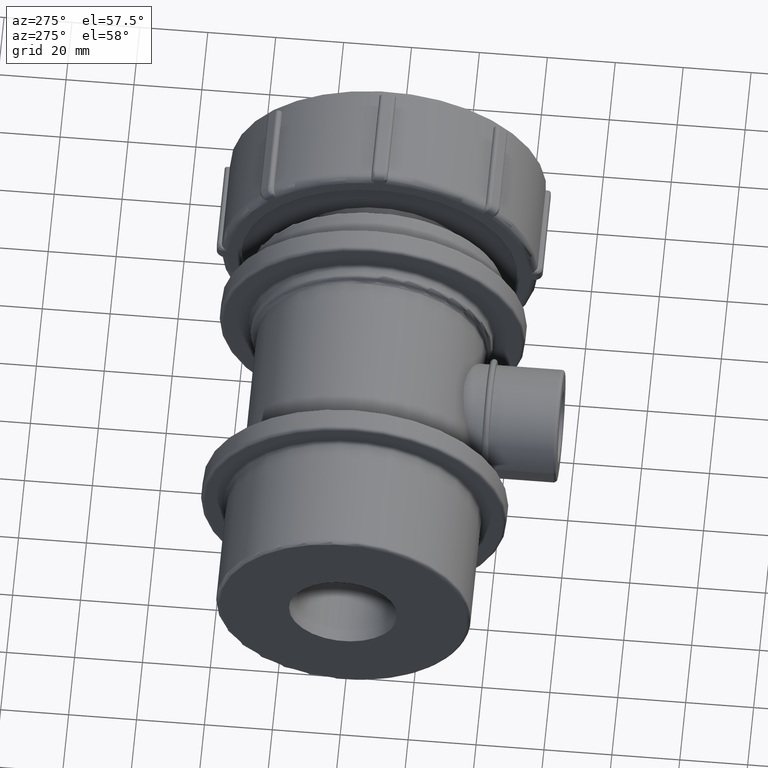
[diagram: clean part render]
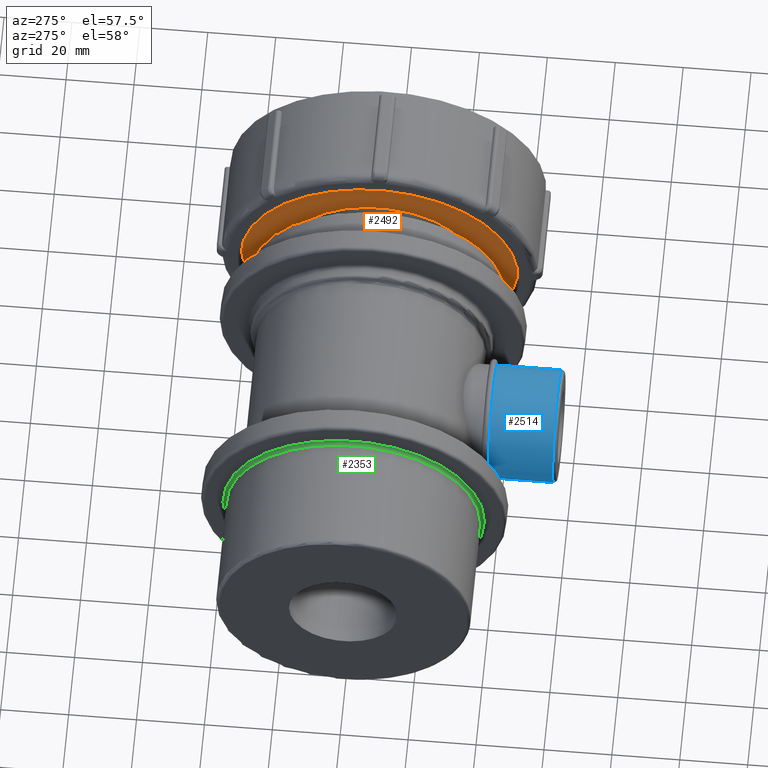
[diagram: same view with three faces highlighted in distinct colors, each labeled with its STEP entity id]
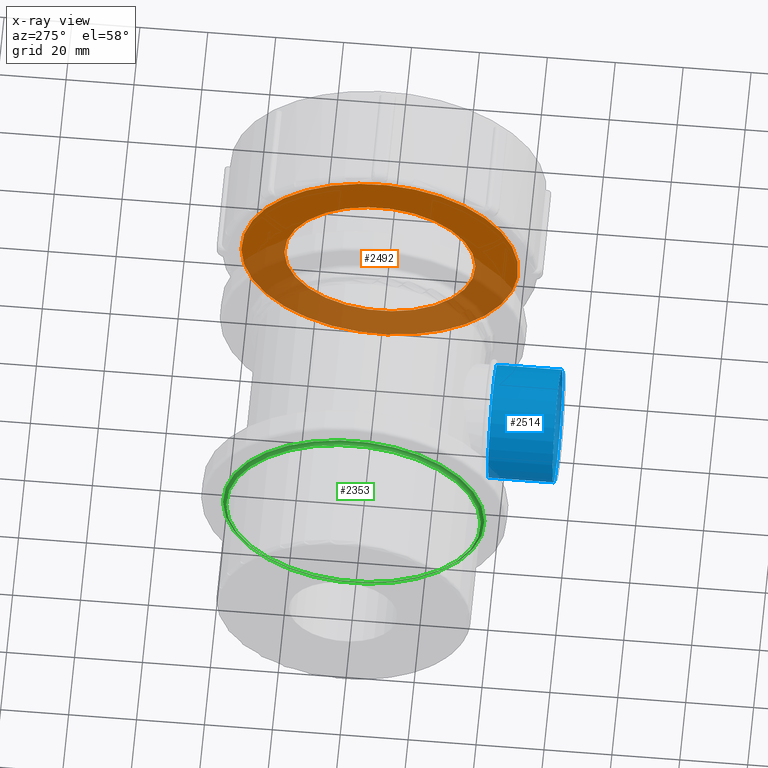
[diagram: x-ray of the same camera — body ghosted, the three highlighted faces saturated]
A machine part, auxiliary view with three faces highlighted in distinct colors.
The next image is the same camera in x-ray (body ghosted, the three faces saturated) — at least one of them is partly hidden behind the body in this view.
Their STEP definitions:

[orange] entity #2492 — the highlighted planar face has unit normal (-1, 0, 0).
#296=PLANE('',#2798);
#335=CIRCLE('',#2577,28.125);
#474=CIRCLE('',#2799,40.8);
#551=FACE_BOUND('',#921,.T.);
#720=FACE_OUTER_BOUND('',#920,.T.);
#920=EDGE_LOOP('',(#2236));
#921=EDGE_LOOP('',(#2237));
#1053=VERTEX_POINT('',#3762);
#1232=VERTEX_POINT('',#4907);
#1285=EDGE_CURVE('',#1053,#1053,#335,.T.);
#1576=EDGE_CURVE('',#1232,#1232,#474,.T.);
#2236=ORIENTED_EDGE('',*,*,#1576,.F.);
#2237=ORIENTED_EDGE('',*,*,#1285,.T.);
#2492=ADVANCED_FACE('',(#720,#551),#296,.T.);
#2577=AXIS2_PLACEMENT_3D('',#3763,#2960,#2961);
#2798=AXIS2_PLACEMENT_3D('',#4906,#3506,#3507);
#2799=AXIS2_PLACEMENT_3D('',#4908,#3508,#3509);
#2960=DIRECTION('center_axis',(1.,0.,0.));
#2961=DIRECTION('ref_axis',(0.,0.,-1.));
#3506=DIRECTION('center_axis',(-1.,0.,0.));
#3507=DIRECTION('ref_axis',(0.,0.,1.));
#3508=DIRECTION('center_axis',(1.,0.,0.));
#3509=DIRECTION('ref_axis',(0.,0.,-1.));
#3762=CARTESIAN_POINT('',(53.275,28.125,0.));
#3763=CARTESIAN_POINT('Origin',(53.275,0.,0.));
#4906=CARTESIAN_POINT('Origin',(53.275,40.8,0.));
#4907=CARTESIAN_POINT('',(53.275,40.8,0.));
#4908=CARTESIAN_POINT('Origin',(53.275,0.,0.));

[blue] entity #2514 — the highlighted cylindrical surface (bore or boss wall) has radius 16.6245 mm, axis along (-0, 1, 0).
#491=CIRCLE('',#2835,16.6245);
#493=CIRCLE('',#2838,16.6245);
#574=FACE_BOUND('',#966,.T.);
#742=FACE_OUTER_BOUND('',#965,.T.);
#965=EDGE_LOOP('',(#2281));
#966=EDGE_LOOP('',(#2282));
#1251=VERTEX_POINT('',#5054);
#1253=VERTEX_POINT('',#5059);
#1595=EDGE_CURVE('',#1251,#1251,#491,.T.);
#1597=EDGE_CURVE('',#1253,#1253,#493,.T.);
#2281=ORIENTED_EDGE('',*,*,#1595,.F.);
#2282=ORIENTED_EDGE('',*,*,#1597,.F.);
#2346=CYLINDRICAL_SURFACE('',#2841,16.6245);
#2514=ADVANCED_FACE('',(#742,#574),#2346,.T.);
#2835=AXIS2_PLACEMENT_3D('',#5055,#3580,#3581);
#2838=AXIS2_PLACEMENT_3D('',#5060,#3586,#3587);
#2841=AXIS2_PLACEMENT_3D('',#5064,#3592,#3593);
#3580=DIRECTION('center_axis',(-1.22464679914735E-16,1.,0.));
#3581=DIRECTION('ref_axis',(1.,1.22464679914735E-16,0.));
#3586=DIRECTION('center_axis',(1.22464679914735E-16,-1.,0.));
#3587=DIRECTION('ref_axis',(1.,1.25216888999499E-16,0.));
#3592=DIRECTION('center_axis',(-1.22464679914735E-16,1.,0.));
#3593=DIRECTION('ref_axis',(-1.,0.,0.));
#5054=CARTESIAN_POINT('',(-16.6245,-38.,0.));
#5055=CARTESIAN_POINT('Origin',(4.65365783675994E-15,-38.,0.));
#5059=CARTESIAN_POINT('',(-16.6245,-57.,-2.03591407124252E-15));
#5060=CARTESIAN_POINT('Origin',(6.98048675513991E-15,-57.,0.));
#5064=CARTESIAN_POINT('Origin',(5.8783046359073E-15,-48.,0.));

[green] entity #2353 — the highlighted toroidal blend (fillet) surface has major radius 38.5 mm and minor (blend) radius 1 mm.
#309=CIRCLE('',#2525,37.5);
#311=CIRCLE('',#2529,38.5);
#496=TOROIDAL_SURFACE('',#2528,38.5,1.);
#523=FACE_BOUND('',#754,.T.);
#581=FACE_OUTER_BOUND('',#753,.T.);
#753=EDGE_LOOP('',(#1607));
#754=EDGE_LOOP('',(#1608));
#1027=VERTEX_POINT('',#3684);
#1029=VERTEX_POINT('',#3690);
#1259=EDGE_CURVE('',#1027,#1027,#309,.T.);
#1261=EDGE_CURVE('',#1029,#1029,#311,.T.);
#1607=ORIENTED_EDGE('',*,*,#1259,.T.);
#1608=ORIENTED_EDGE('',*,*,#1261,.T.);
#2353=ADVANCED_FACE('',(#581,#523),#496,.F.);
#2525=AXIS2_PLACEMENT_3D('',#3685,#2856,#2857);
#2528=AXIS2_PLACEMENT_3D('',#3689,#2862,#2863);
#2529=AXIS2_PLACEMENT_3D('',#3691,#2864,#2865);
#2856=DIRECTION('center_axis',(1.,0.,0.));
#2857=DIRECTION('ref_axis',(0.,-1.,1.83697019872103E-16));
#2862=DIRECTION('center_axis',(1.,0.,0.));
#2863=DIRECTION('ref_axis',(0.,0.,-1.));
#2864=DIRECTION('center_axis',(-1.,0.,0.));
#2865=DIRECTION('ref_axis',(0.,-1.,1.83697019872103E-16));
#3684=CARTESIAN_POINT('',(-35.825,37.5,-2.29621274840129E-15));
#3685=CARTESIAN_POINT('Origin',(-35.825,0.,0.));
#3689=CARTESIAN_POINT('Origin',(-35.825,0.,0.));
#3690=CARTESIAN_POINT('',(-34.825,38.5,-1.17872254417933E-14));
#3691=CARTESIAN_POINT('Origin',(-34.825,0.,0.));